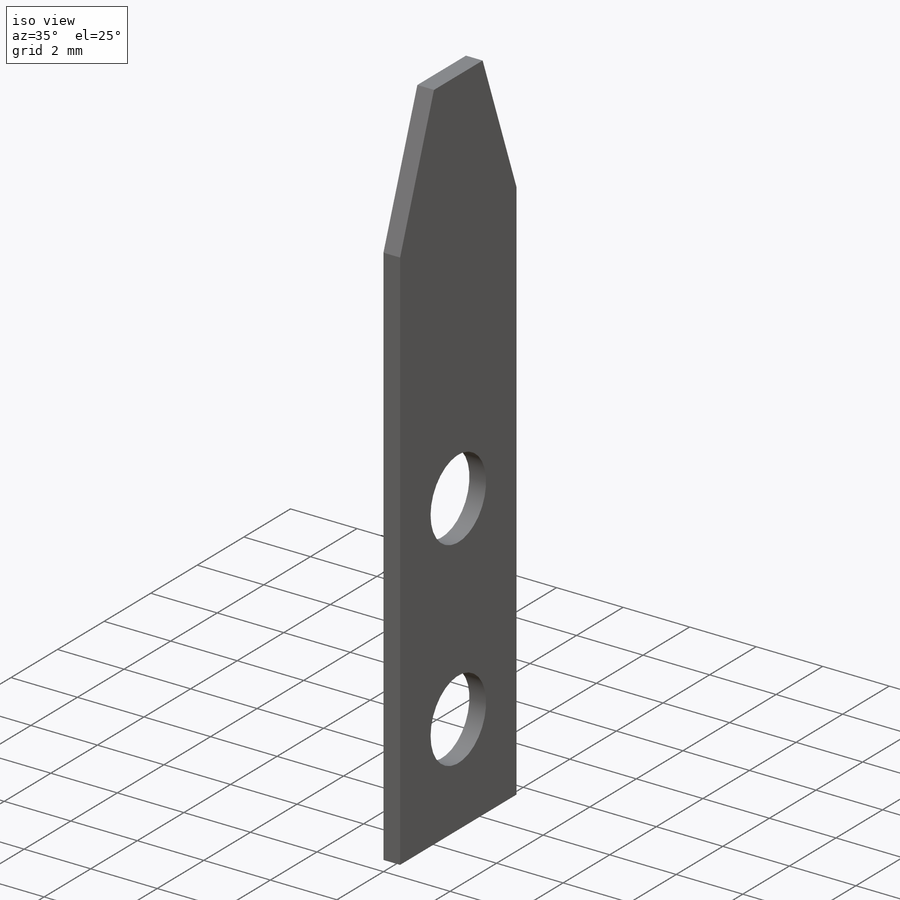
[diagram: iso view]
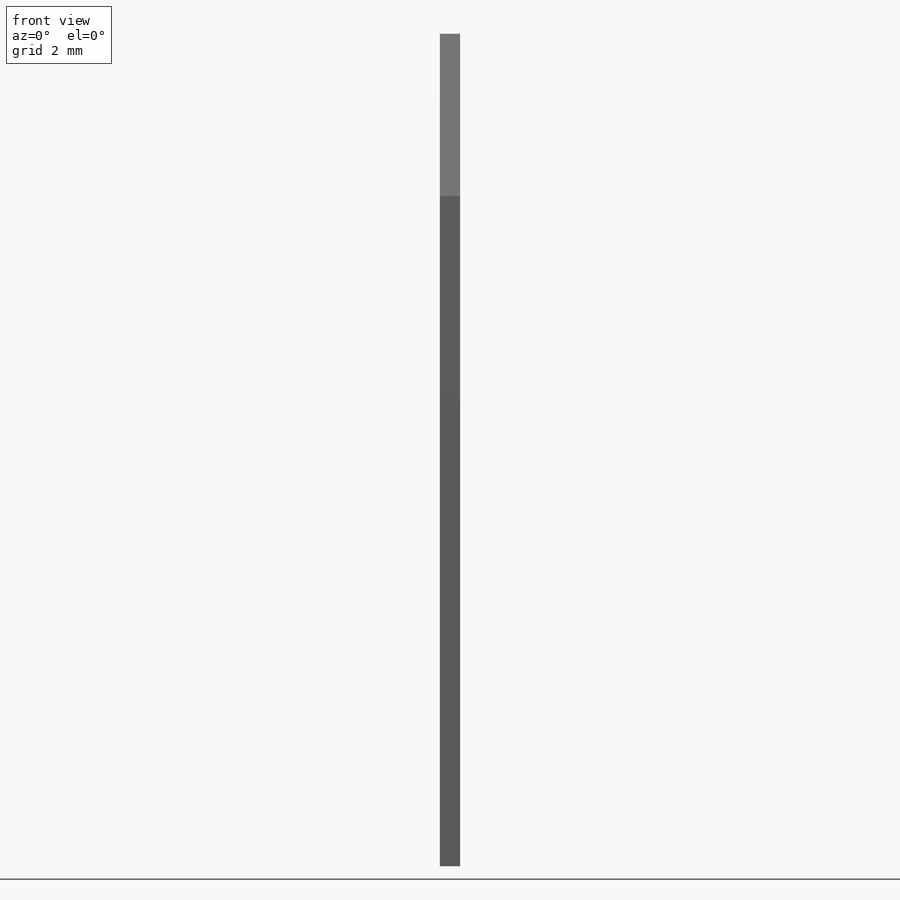
[diagram: front view]
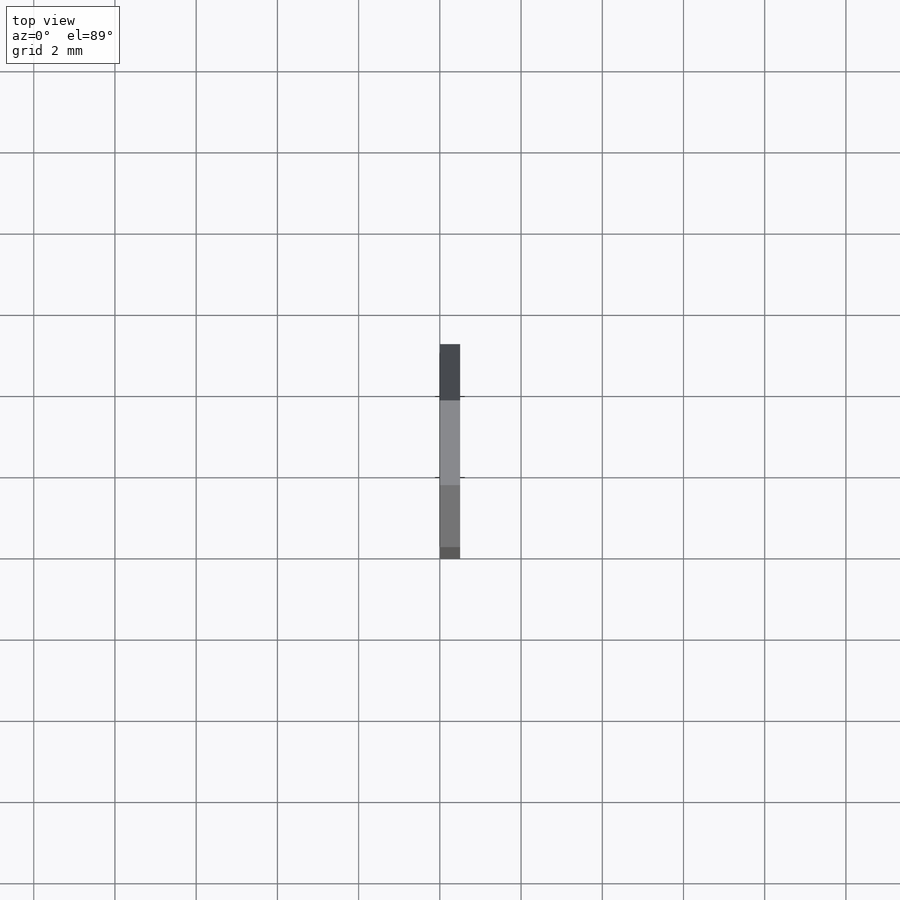
[diagram: top view]
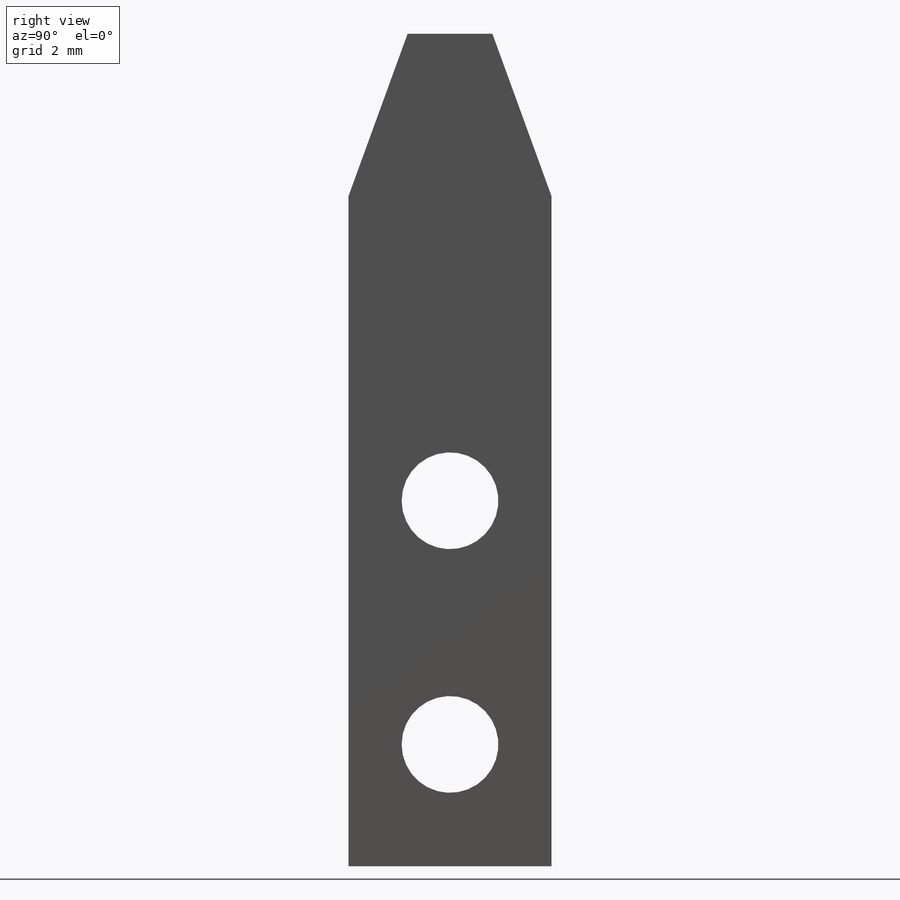
[diagram: right view]
SOLIDWORKS PART (.sldprt)
format: sldprt  version: not decoded by parser v0  size: 184,320 bytes
history: native  units: mm
features: plane x3, sketch x3, material x1, extrude x1, hole x1, chamfer x1 (+13 scaffold rows collapsed)
feature tree (23):
  scaffold x13  (default folders/planes/origin — collapsed)
  material  "AISI 316 Нержавеющая сталь, лист (SS)"
  plane  "Спереди"
  plane  "Сверху"
  plane  "Справа"
  sketch  "Эскиз1"  dims[D1=5.0mm D2=20.5mm]
  extrude  "Бобышка-Вытянуть1"  Depth=0.5mm
  hole  "Сверло под метчик  спиральное #21"  [1 undecoded]
  sketch  "Эскиз3"  dims[D1=6.0mm D2=2.5mm D3=3.0mm D4=6.5mm]
  sketch  "Эскиз2"  dims[hole-wizard template sketch: 59 standard entries collapsed; hole parameters kept: c18.Диаметр сквозного отверстия=~2.38252mm c18.Глубина сквозного отверстия=0.5mm]
  chamfer  "Фаска1"  Distance=4mm Angle=20deg
decode coverage: 5 of 6 modeling features carry decoded parameters
note: ~ marks probable driven/reference dimensions
note: 1 parameter value undecoded
note: suppression state not decoded; provenance and decode notes live in map.json
